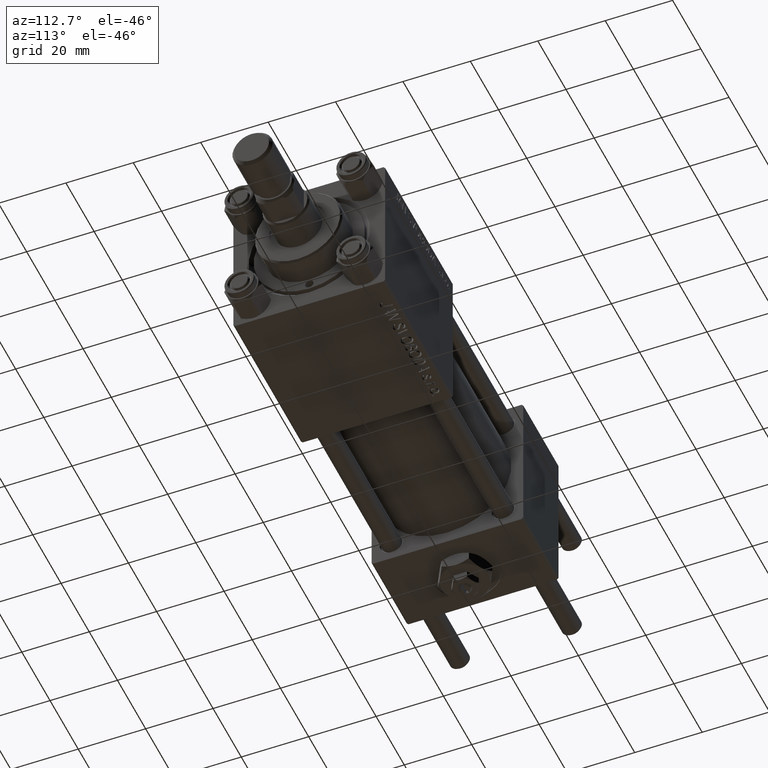
[diagram: clean part render]
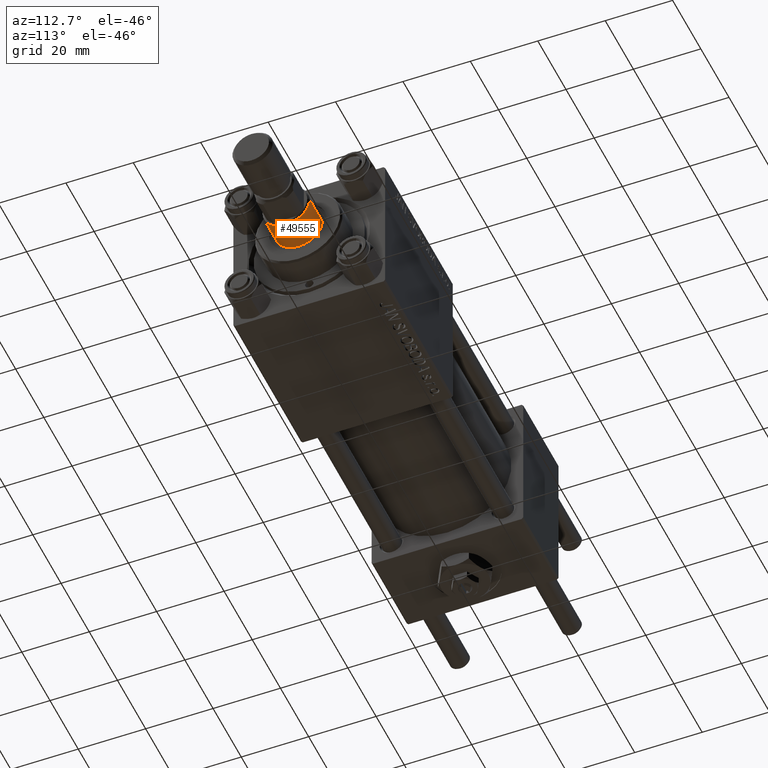
[diagram: same view with one face highlighted and labeled with its STEP entity id]
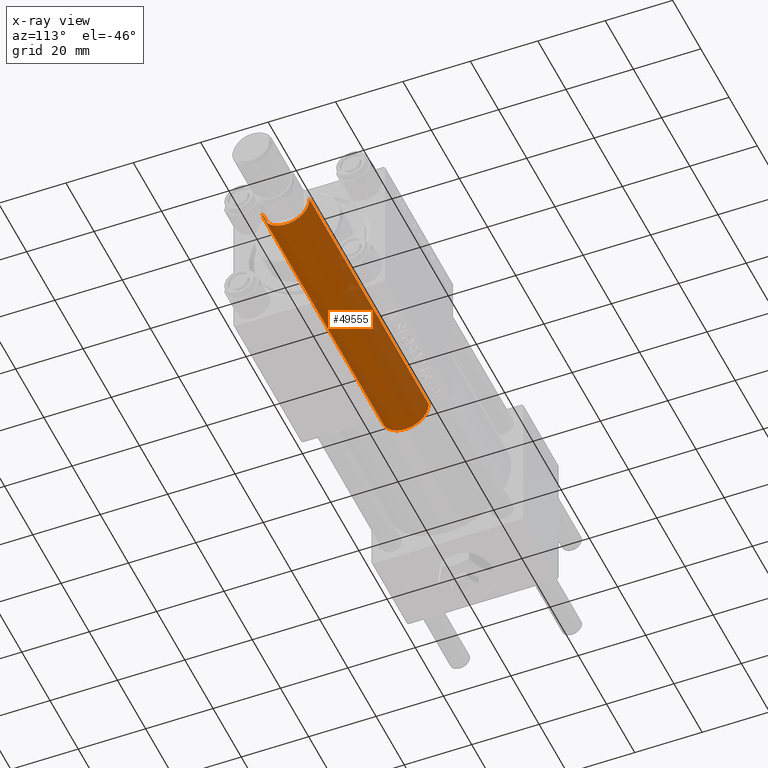
[diagram: x-ray of the same camera — body ghosted, the highlighted face saturated]
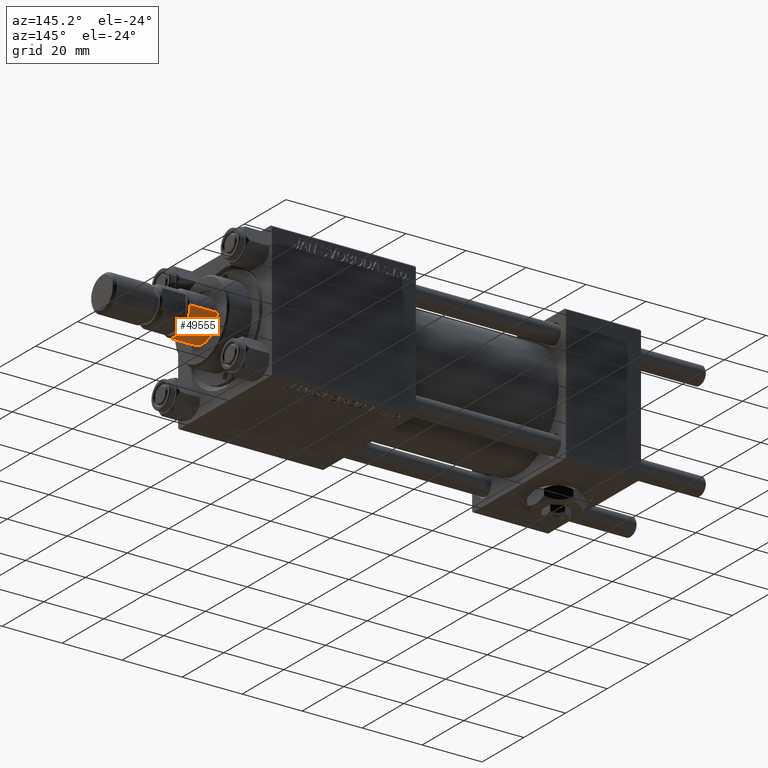
[diagram: same view with one face highlighted and labeled with its STEP entity id]
A machine part, auxiliary view. The second image highlights one B-rep face of the part: STEP entity #49555.
The next image is the same camera in x-ray: the body ghosted, the highlighted face saturated — about 44% of this face is hidden behind the body in this view.
A second angle (auxiliary view) of the same face is appended — the face is thin or edge-on in the first view.
In plain terms, the highlighted cylindrical surface (edge-blend (fillet) strip) has radius 7 mm, axis along (-1, 0, 0).
Its self-contained STEP definition (entity closure, byte-faithful):
#3043 = CIRCLE ( 'NONE', #4705, 7.000000000000000000 ) ;
#3225 = DIRECTION ( 'NONE',  ( 1.000000000000000000, 0.000000000000000000, 0.000000000000000000 ) ) ;
#3907 = DIRECTION ( 'NONE',  ( -0.000000000000000000, -0.000000000000000000, -1.000000000000000000 ) ) ;
#4425 = CARTESIAN_POINT ( 'NONE',  ( 7.000000000000000000, 8.572527594031473190E-16, 115.0000000000000000 ) ) ;
#4705 = AXIS2_PLACEMENT_3D ( 'NONE', #26814, #35256, #43945 ) ;
#4778 = ORIENTED_EDGE ( 'NONE', *, *, #37971, .T. ) ;
#6679 = VERTEX_POINT ( 'NONE', #31191 ) ;
#8359 = CARTESIAN_POINT ( 'NONE',  ( 0.000000000000000000, 0.000000000000000000, 115.0000000000000000 ) ) ;
#9787 = EDGE_CURVE ( 'NONE', #11745, #6679, #17495, .T. ) ;
#11745 = VERTEX_POINT ( 'NONE', #41924 ) ;
#12339 = DIRECTION ( 'NONE',  ( -1.000000000000000000, 0.000000000000000000, 0.000000000000000000 ) ) ;
#13725 = EDGE_CURVE ( 'NONE', #26349, #36667, #3043, .T. ) ;
#16046 = FACE_OUTER_BOUND ( 'NONE', #18486, .T. ) ;
#16592 = LINE ( 'NONE', #44315, #48261 ) ;
#17495 = CIRCLE ( 'NONE', #20056, 7.000000000000000000 ) ;
#18486 = EDGE_LOOP ( 'NONE', ( #49483, #4778, #33747, #41829 ) ) ;
#20023 = DIRECTION ( 'NONE',  ( -0.000000000000000000, -0.000000000000000000, -1.000000000000000000 ) ) ;
#20056 = AXIS2_PLACEMENT_3D ( 'NONE', #44412, #28324, #3225 ) ;
#26349 = VERTEX_POINT ( 'NONE', #50092 ) ;
#26814 = CARTESIAN_POINT ( 'NONE',  ( 0.000000000000000000, 0.000000000000000000, 114.4999999999999858 ) ) ;
#28324 = DIRECTION ( 'NONE',  ( 0.000000000000000000, 0.000000000000000000, 1.000000000000000000 ) ) ;
#31191 = CARTESIAN_POINT ( 'NONE',  ( -7.000000000000000000, 0.000000000000000000, 30.00000000000000000 ) ) ;
#31763 = EDGE_CURVE ( 'NONE', #26349, #6679, #16592, .T. ) ;
#32665 = DIRECTION ( 'NONE',  ( -0.000000000000000000, -0.000000000000000000, -1.000000000000000000 ) ) ;
#33747 = ORIENTED_EDGE ( 'NONE', *, *, #9787, .T. ) ;
#34866 = VECTOR ( 'NONE', #20023, 1000.000000000000000 ) ;
#35256 = DIRECTION ( 'NONE',  ( 0.000000000000000000, 0.000000000000000000, -1.000000000000000000 ) ) ;
#36636 = CYLINDRICAL_SURFACE ( 'NONE', #45576, 7.000000000000000000 ) ;
#36667 = VERTEX_POINT ( 'NONE', #45577 ) ;
#37971 = EDGE_CURVE ( 'NONE', #36667, #11745, #44305, .T. ) ;
#41829 = ORIENTED_EDGE ( 'NONE', *, *, #31763, .F. ) ;
#41924 = CARTESIAN_POINT ( 'NONE',  ( 7.000000000000000000, 8.572527594031473190E-16, 30.00000000000000000 ) ) ;
#43945 = DIRECTION ( 'NONE',  ( 1.000000000000000000, 0.000000000000000000, 0.000000000000000000 ) ) ;
#44305 = LINE ( 'NONE', #4425, #34866 ) ;
#44315 = CARTESIAN_POINT ( 'NONE',  ( -7.000000000000000000, 0.000000000000000000, 115.0000000000000000 ) ) ;
#44412 = CARTESIAN_POINT ( 'NONE',  ( 0.000000000000000000, 0.000000000000000000, 30.00000000000000000 ) ) ;
#45576 = AXIS2_PLACEMENT_3D ( 'NONE', #8359, #32665, #12339 ) ;
#45577 = CARTESIAN_POINT ( 'NONE',  ( 7.000000000000000000, 8.572527594031473190E-16, 114.4999999999999858 ) ) ;
#48261 = VECTOR ( 'NONE', #3907, 1000.000000000000000 ) ;
#49483 = ORIENTED_EDGE ( 'NONE', *, *, #13725, .T. ) ;
#49555 = ADVANCED_FACE ( 'NONE', ( #16046 ), #36636, .T. ) ;
#50092 = CARTESIAN_POINT ( 'NONE',  ( -7.000000000000000000, 0.000000000000000000, 114.4999999999999858 ) ) ;